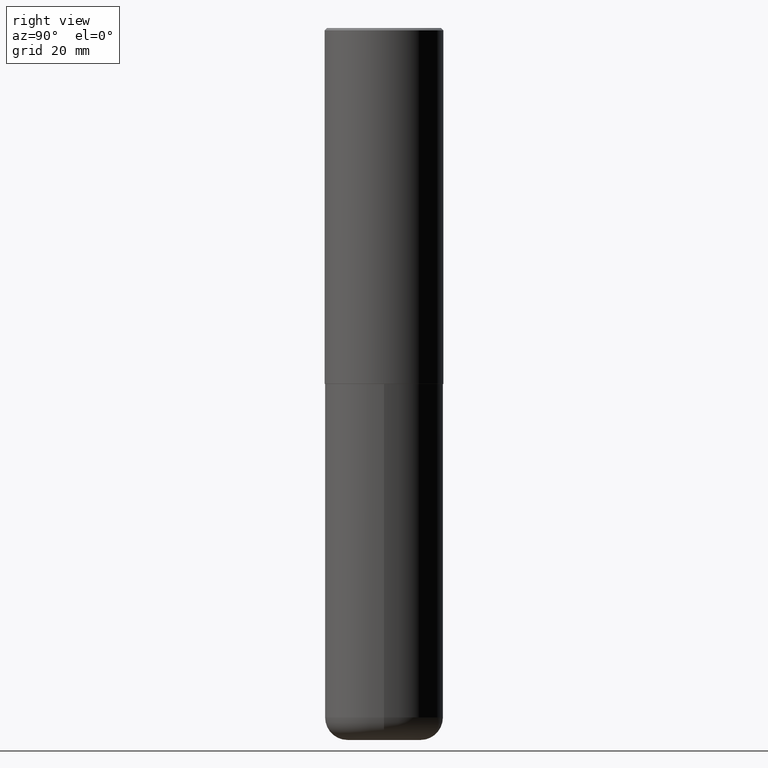
[diagram: clean part render]
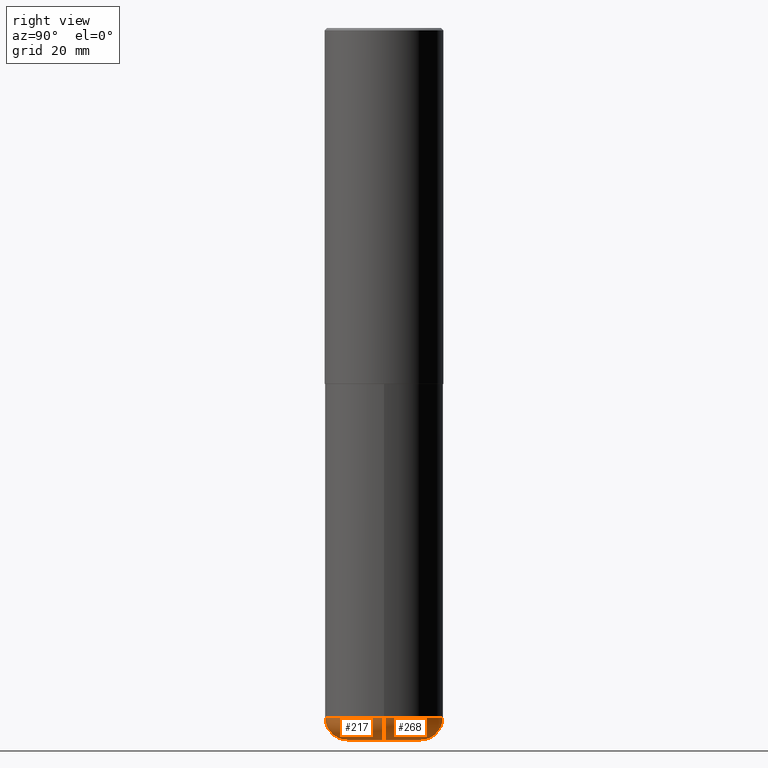
[diagram: same view with one multi-face feature highlighted, each face labeled with its STEP entity id]
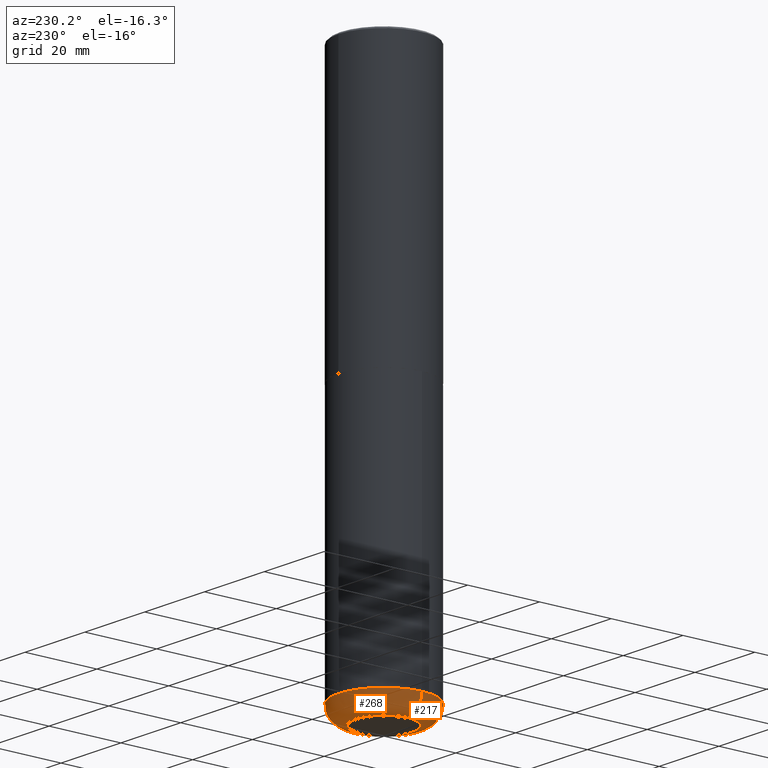
[diagram: same view with one multi-face feature highlighted, each face labeled with its STEP entity id]
A machine part, right view. The highlighted faces form ONE feature: a constant-radius fillet chain: 2 tangent blend faces with common blend radius 4.826 mm. The faces share edges in the B-rep.
A second angle (auxiliary view) of the same feature is appended — it is thin or edge-on in the first view.
Their STEP definitions:
[1] entity #217 (Torus):
#11 = TOROIDAL_SURFACE ( 'NONE', #299, 0.3099999999999999978, 0.1899999999999999467 ) ;
#41 = EDGE_CURVE ( 'NONE', #332, #51, #101, .T. ) ;
#51 = VERTEX_POINT ( 'NONE', #300 ) ;
#57 = CARTESIAN_POINT ( 'NONE',  ( 1.467281283711081958E-28, -2.094888803305887271E-14, -6.000000000000000888 ) ) ;
#68 = CARTESIAN_POINT ( 'NONE',  ( 1.420817376393564695E-28, -2.028550657867867926E-14, -5.810000000000000497 ) ) ;
#85 = AXIS2_PLACEMENT_3D ( 'NONE', #343, #145, #176 ) ;
#100 = FACE_OUTER_BOUND ( 'NONE', #135, .T. ) ;
#101 = CIRCLE ( 'NONE', #234, 0.1899999999999999467 ) ;
#112 = VERTEX_POINT ( 'NONE', #272 ) ;
#119 = DIRECTION ( 'NONE',  ( 1.000000000000000000, -6.982962677686263555E-15, 0.000000000000000000 ) ) ;
#120 = CIRCLE ( 'NONE', #85, 0.1899999999999999467 ) ;
#134 = ORIENTED_EDGE ( 'NONE', *, *, #330, .T. ) ;
#135 = EDGE_LOOP ( 'NONE', ( #195, #134, #316, #257 ) ) ;
#139 = EDGE_CURVE ( 'NONE', #51, #112, #309, .T. ) ;
#145 = DIRECTION ( 'NONE',  ( -6.982962677686266711E-15, -1.000000000000000000, 3.491481338843145583E-15 ) ) ;
#149 = DIRECTION ( 'NONE',  ( -2.445468806185136597E-29, 3.491481338843145583E-15, 1.000000000000000000 ) ) ;
#176 = DIRECTION ( 'NONE',  ( 1.000000000000000000, -6.982962677686263555E-15, 0.000000000000000000 ) ) ;
#180 = VERTEX_POINT ( 'NONE', #391 ) ;
#192 = CIRCLE ( 'NONE', #277, 0.3099999999999999978 ) ;
#195 = ORIENTED_EDGE ( 'NONE', *, *, #41, .F. ) ;
#198 = AXIS2_PLACEMENT_3D ( 'NONE', #68, #149, #413 ) ;
#209 = DIRECTION ( 'NONE',  ( -2.445468806185136597E-29, 3.491481338843145583E-15, 1.000000000000000000 ) ) ;
#217 = ADVANCED_FACE ( 'NONE', ( #100 ), #11, .T. ) ;
#234 = AXIS2_PLACEMENT_3D ( 'NONE', #354, #401, #405 ) ;
#249 = DIRECTION ( 'NONE',  ( -2.445468806185136597E-29, 3.491481338843145583E-15, 1.000000000000000000 ) ) ;
#257 = ORIENTED_EDGE ( 'NONE', *, *, #139, .F. ) ;
#272 = CARTESIAN_POINT ( 'NONE',  ( 0.5000000000000000000, -2.377698791752181577E-14, -5.810000000000000497 ) ) ;
#275 = DIRECTION ( 'NONE',  ( 1.000000000000000000, -6.982962677686264344E-15, 4.883557194083112340E-29 ) ) ;
#277 = AXIS2_PLACEMENT_3D ( 'NONE', #57, #209, #119 ) ;
#299 = AXIS2_PLACEMENT_3D ( 'NONE', #392, #249, #275 ) ;
#300 = CARTESIAN_POINT ( 'NONE',  ( -0.5000000000000000000, -1.673279289987817518E-14, -5.810000000000000497 ) ) ;
#309 = CIRCLE ( 'NONE', #198, 0.5000000000000000000 ) ;
#316 = ORIENTED_EDGE ( 'NONE', *, *, #344, .T. ) ;
#330 = EDGE_CURVE ( 'NONE', #332, #180, #192, .T. ) ;
#332 = VERTEX_POINT ( 'NONE', #374 ) ;
#343 = CARTESIAN_POINT ( 'NONE',  ( 0.3099999999999999978, -2.245022500876142257E-14, -5.810000000000000497 ) ) ;
#344 = EDGE_CURVE ( 'NONE', #180, #112, #120, .T. ) ;
#354 = CARTESIAN_POINT ( 'NONE',  ( -0.3099999999999999978, -1.808282409782236831E-14, -5.810000000000000497 ) ) ;
#374 = CARTESIAN_POINT ( 'NONE',  ( -0.3099999999999999978, -1.773949922604037162E-14, -6.000000000000000888 ) ) ;
#391 = CARTESIAN_POINT ( 'NONE',  ( 0.3099999999999999978, -2.311360646314161602E-14, -6.000000000000000888 ) ) ;
#392 = CARTESIAN_POINT ( 'NONE',  ( 1.420817376393564695E-28, -2.028550657867867926E-14, -5.810000000000000497 ) ) ;
#401 = DIRECTION ( 'NONE',  ( 7.105427357601001859E-15, 1.000000000000000000, -3.491481338843145583E-15 ) ) ;
#405 = DIRECTION ( 'NONE',  ( -1.000000000000000000, 7.105427357600999492E-15, 0.000000000000000000 ) ) ;
#413 = DIRECTION ( 'NONE',  ( 1.000000000000000000, -6.982962677686270655E-15, 0.000000000000000000 ) ) ;
[2] entity #268 (Torus):
#20 = AXIS2_PLACEMENT_3D ( 'NONE', #35, #22, #210 ) ;
#22 = DIRECTION ( 'NONE',  ( -2.445468806185136597E-29, 3.491481338843145583E-15, 1.000000000000000000 ) ) ;
#35 = CARTESIAN_POINT ( 'NONE',  ( 1.467281283711081958E-28, -2.094888803305887271E-14, -6.000000000000000888 ) ) ;
#37 = FACE_OUTER_BOUND ( 'NONE', #233, .T. ) ;
#41 = EDGE_CURVE ( 'NONE', #332, #51, #101, .T. ) ;
#51 = VERTEX_POINT ( 'NONE', #300 ) ;
#60 = TOROIDAL_SURFACE ( 'NONE', #406, 0.3099999999999999978, 0.1899999999999999467 ) ;
#76 = CIRCLE ( 'NONE', #310, 0.5000000000000000000 ) ;
#82 = ORIENTED_EDGE ( 'NONE', *, *, #162, .T. ) ;
#85 = AXIS2_PLACEMENT_3D ( 'NONE', #343, #145, #176 ) ;
#89 = CARTESIAN_POINT ( 'NONE',  ( 1.420817376393564695E-28, -2.028550657867867926E-14, -5.810000000000000497 ) ) ;
#101 = CIRCLE ( 'NONE', #234, 0.1899999999999999467 ) ;
#112 = VERTEX_POINT ( 'NONE', #272 ) ;
#120 = CIRCLE ( 'NONE', #85, 0.1899999999999999467 ) ;
#145 = DIRECTION ( 'NONE',  ( -6.982962677686266711E-15, -1.000000000000000000, 3.491481338843145583E-15 ) ) ;
#151 = DIRECTION ( 'NONE',  ( 1.000000000000000000, -6.982962677686270655E-15, 0.000000000000000000 ) ) ;
#159 = EDGE_CURVE ( 'NONE', #112, #51, #76, .T. ) ;
#162 = EDGE_CURVE ( 'NONE', #180, #332, #329, .T. ) ;
#168 = ORIENTED_EDGE ( 'NONE', *, *, #344, .F. ) ;
#176 = DIRECTION ( 'NONE',  ( 1.000000000000000000, -6.982962677686263555E-15, 0.000000000000000000 ) ) ;
#180 = VERTEX_POINT ( 'NONE', #391 ) ;
#190 = ORIENTED_EDGE ( 'NONE', *, *, #41, .T. ) ;
#210 = DIRECTION ( 'NONE',  ( 1.000000000000000000, -6.982962677686263555E-15, 0.000000000000000000 ) ) ;
#213 = DIRECTION ( 'NONE',  ( 1.000000000000000000, -6.982962677686264344E-15, 4.883557194083112340E-29 ) ) ;
#233 = EDGE_LOOP ( 'NONE', ( #82, #190, #314, #168 ) ) ;
#234 = AXIS2_PLACEMENT_3D ( 'NONE', #354, #401, #405 ) ;
#268 = ADVANCED_FACE ( 'NONE', ( #37 ), #60, .T. ) ;
#272 = CARTESIAN_POINT ( 'NONE',  ( 0.5000000000000000000, -2.377698791752181577E-14, -5.810000000000000497 ) ) ;
#288 = DIRECTION ( 'NONE',  ( -2.445468806185136597E-29, 3.491481338843145583E-15, 1.000000000000000000 ) ) ;
#300 = CARTESIAN_POINT ( 'NONE',  ( -0.5000000000000000000, -1.673279289987817518E-14, -5.810000000000000497 ) ) ;
#310 = AXIS2_PLACEMENT_3D ( 'NONE', #89, #288, #151 ) ;
#314 = ORIENTED_EDGE ( 'NONE', *, *, #159, .F. ) ;
#322 = DIRECTION ( 'NONE',  ( -2.445468806185136597E-29, 3.491481338843145583E-15, 1.000000000000000000 ) ) ;
#329 = CIRCLE ( 'NONE', #20, 0.3099999999999999978 ) ;
#332 = VERTEX_POINT ( 'NONE', #374 ) ;
#343 = CARTESIAN_POINT ( 'NONE',  ( 0.3099999999999999978, -2.245022500876142257E-14, -5.810000000000000497 ) ) ;
#344 = EDGE_CURVE ( 'NONE', #180, #112, #120, .T. ) ;
#354 = CARTESIAN_POINT ( 'NONE',  ( -0.3099999999999999978, -1.808282409782236831E-14, -5.810000000000000497 ) ) ;
#356 = CARTESIAN_POINT ( 'NONE',  ( 1.420817376393564695E-28, -2.028550657867867926E-14, -5.810000000000000497 ) ) ;
#374 = CARTESIAN_POINT ( 'NONE',  ( -0.3099999999999999978, -1.773949922604037162E-14, -6.000000000000000888 ) ) ;
#391 = CARTESIAN_POINT ( 'NONE',  ( 0.3099999999999999978, -2.311360646314161602E-14, -6.000000000000000888 ) ) ;
#401 = DIRECTION ( 'NONE',  ( 7.105427357601001859E-15, 1.000000000000000000, -3.491481338843145583E-15 ) ) ;
#405 = DIRECTION ( 'NONE',  ( -1.000000000000000000, 7.105427357600999492E-15, 0.000000000000000000 ) ) ;
#406 = AXIS2_PLACEMENT_3D ( 'NONE', #356, #322, #213 ) ;